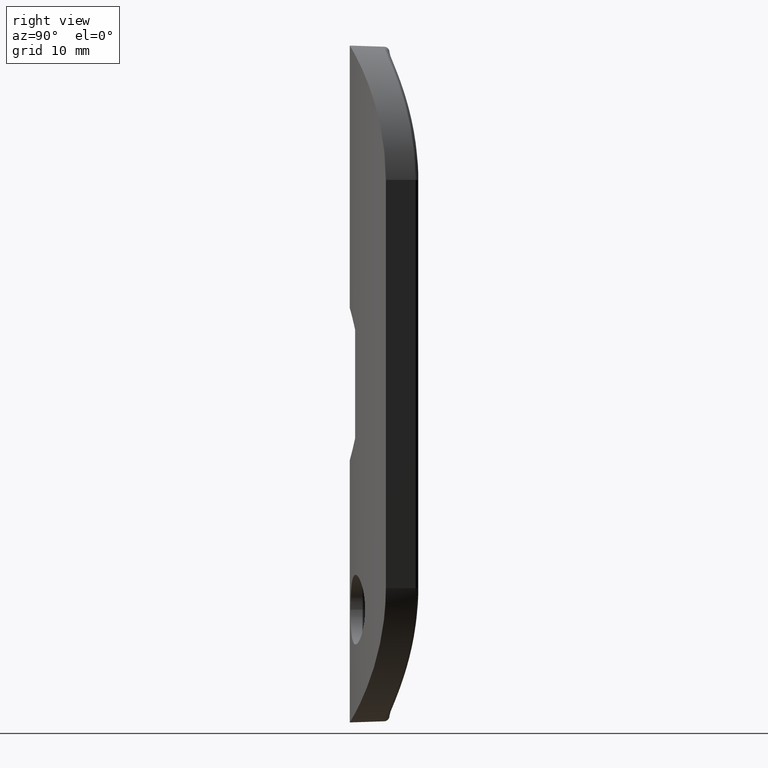
[diagram: clean part render]
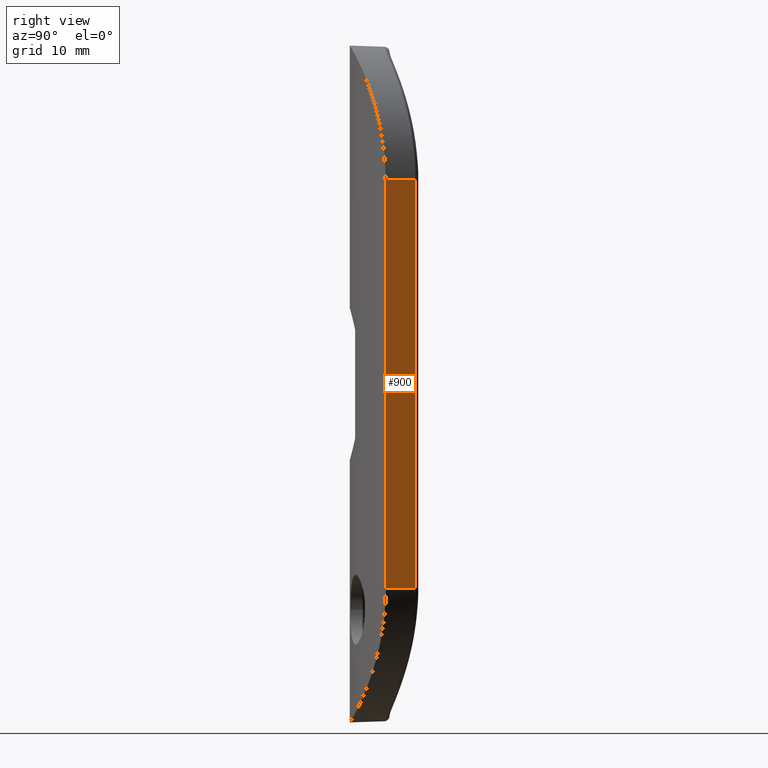
[diagram: same view with one face highlighted and labeled with its STEP entity id]
A machine part, right view. The second image highlights one B-rep face of the part: STEP entity #900.
In plain terms, the highlighted planar face has unit normal (-0.8649, -0.502, 0).
Its self-contained STEP definition (entity closure, byte-faithful):
#73 = VERTEX_POINT ( 'NONE', #1215 ) ;
#76 = VECTOR ( 'NONE', #9461, 1000.000000000000000 ) ;
#151 = CARTESIAN_POINT ( 'NONE',  ( 12.50000000000000355, -0.3350876478364927524, -19.00000000000000355 ) ) ;
#212 = CARTESIAN_POINT ( 'NONE',  ( 10.64257028112449888, 2.864905295817925079, 31.50000000000000000 ) ) ;
#220 = FACE_OUTER_BOUND ( 'NONE', #3042, .T. ) ;
#900 = ADVANCED_FACE ( 'NONE', ( #220 ), #5927, .F. ) ;
#935 = DIRECTION ( 'NONE',  ( -0.5020080321285148583, 0.8648629577444371108, 0.000000000000000000 ) ) ;
#1065 = CARTESIAN_POINT ( 'NONE',  ( 12.50000000000000178, -0.3350876478364899214, 19.00000000000000000 ) ) ;
#1215 = CARTESIAN_POINT ( 'NONE',  ( 10.89068216193509109, 2.437456407839874828, -19.00000000000000355 ) ) ;
#1690 = ORIENTED_EDGE ( 'NONE', *, *, #11258, .T. ) ;
#1964 = AXIS2_PLACEMENT_3D ( 'NONE', #212, #2067, #11996 ) ;
#2067 = DIRECTION ( 'NONE',  ( -0.8648629577444371108, -0.5020080321285148583, 0.000000000000000000 ) ) ;
#2315 = CARTESIAN_POINT ( 'NONE',  ( 10.89068216193509109, 2.437456407839874828, 31.50000000000000000 ) ) ;
#2459 = DIRECTION ( 'NONE',  ( -0.000000000000000000, -0.000000000000000000, -1.000000000000000000 ) ) ;
#3042 = EDGE_LOOP ( 'NONE', ( #7646, #11770, #1690, #8421 ) ) ;
#4015 = VERTEX_POINT ( 'NONE', #151 ) ;
#4577 = CARTESIAN_POINT ( 'NONE',  ( 12.50000000000000355, -0.3350876478364927524, 19.00000000000000000 ) ) ;
#5162 = CARTESIAN_POINT ( 'NONE',  ( 12.50000000000000355, -0.3350876478364927524, 31.50000000000000000 ) ) ;
#5927 = PLANE ( 'NONE',  #1964 ) ;
#6502 = VECTOR ( 'NONE', #10808, 1000.000000000000227 ) ;
#6880 = LINE ( 'NONE', #2315, #76 ) ;
#7036 = CARTESIAN_POINT ( 'NONE',  ( 10.64257028112449888, 2.864905295817925079, -19.00000000000000355 ) ) ;
#7305 = EDGE_CURVE ( 'NONE', #73, #9602, #6880, .T. ) ;
#7646 = ORIENTED_EDGE ( 'NONE', *, *, #11289, .T. ) ;
#8421 = ORIENTED_EDGE ( 'NONE', *, *, #12518, .T. ) ;
#9461 = DIRECTION ( 'NONE',  ( -0.000000000000000000, -0.000000000000000000, 1.000000000000000000 ) ) ;
#9474 = LINE ( 'NONE', #5162, #9921 ) ;
#9602 = VERTEX_POINT ( 'NONE', #11499 ) ;
#9921 = VECTOR ( 'NONE', #2459, 1000.000000000000000 ) ;
#10043 = LINE ( 'NONE', #1065, #6502 ) ;
#10358 = VECTOR ( 'NONE', #935, 1000.000000000000227 ) ;
#10808 = DIRECTION ( 'NONE',  ( 0.5020080321285148583, -0.8648629577444371108, -0.000000000000000000 ) ) ;
#11258 = EDGE_CURVE ( 'NONE', #9602, #11605, #10043, .T. ) ;
#11289 = EDGE_CURVE ( 'NONE', #4015, #73, #11434, .T. ) ;
#11434 = LINE ( 'NONE', #7036, #10358 ) ;
#11499 = CARTESIAN_POINT ( 'NONE',  ( 10.89068216193509109, 2.437456407839873940, 19.00000000000000000 ) ) ;
#11605 = VERTEX_POINT ( 'NONE', #4577 ) ;
#11770 = ORIENTED_EDGE ( 'NONE', *, *, #7305, .T. ) ;
#11996 = DIRECTION ( 'NONE',  ( 0.5020080321285148583, -0.8648629577444371108, 0.000000000000000000 ) ) ;
#12518 = EDGE_CURVE ( 'NONE', #11605, #4015, #9474, .T. ) ;